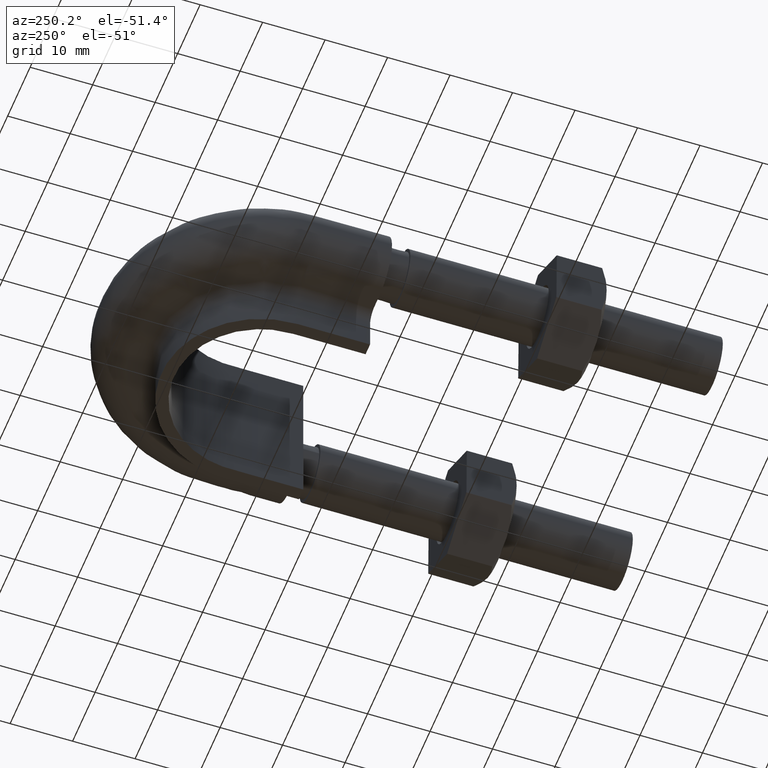
[diagram: clean part render]
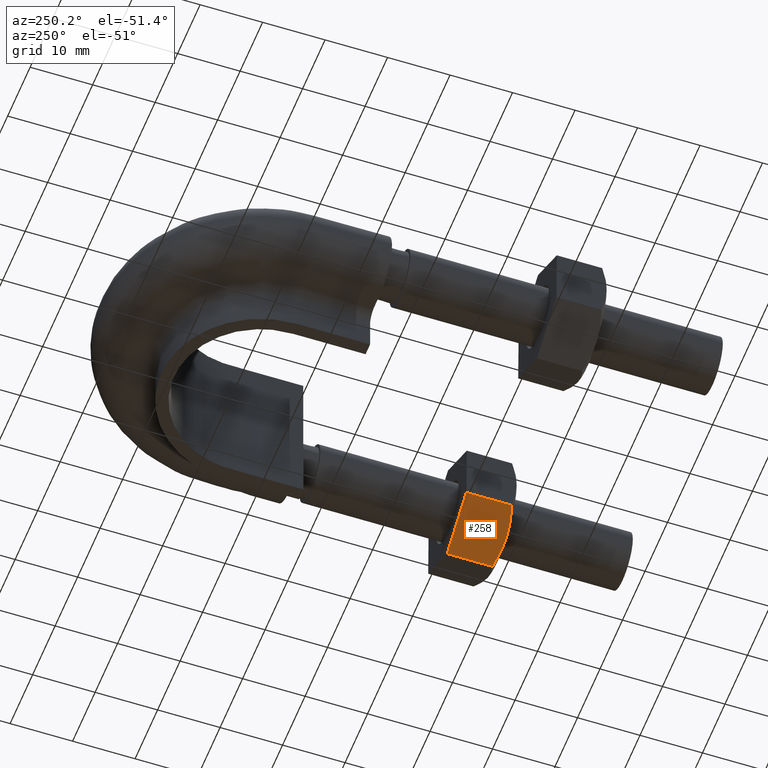
[diagram: same view with one face highlighted and labeled with its STEP entity id]
A machine part, auxiliary view. The second image highlights one B-rep face of the part: STEP entity #258.
In plain terms, the highlighted planar face has unit normal (0.4823, -0, 0.876).
Its self-contained STEP definition (entity closure, byte-faithful):
#258 = ADVANCED_FACE( '', ( #371 ), #372, .F. );
#371 = FACE_OUTER_BOUND( '', #1229, .T. );
#372 = PLANE( '', #1230 );
#1229 = EDGE_LOOP( '', ( #1569, #1570, #1571, #1572, #1573 ) );
#1230 = AXIS2_PLACEMENT_3D( '', #1574, #1575, #1576 );
#1569 = ORIENTED_EDGE( '', *, *, #1811, .F. );
#1570 = ORIENTED_EDGE( '', *, *, #1812, .F. );
#1571 = ORIENTED_EDGE( '', *, *, #1813, .F. );
#1572 = ORIENTED_EDGE( '', *, *, #1814, .F. );
#1573 = ORIENTED_EDGE( '', *, *, #1815, .F. );
#1574 = CARTESIAN_POINT( '', ( 20.1997514364695, 28.0000000000024, -9.81292172071915 ) );
#1575 = DIRECTION( '', ( 0.482271314163917, -2.89876105836329E-016, 0.876021905853163 ) );
#1576 = DIRECTION( '', ( -6.01064374601812E-016, -1.00000000000000, 0.000000000000000 ) );
#1811 = EDGE_CURVE( '', #1989, #1990, #1991, .T. );
#1812 = EDGE_CURVE( '', #1992, #1989, #1993, .T. );
#1813 = EDGE_CURVE( '', #1994, #1992, #1995, .T. );
#1814 = EDGE_CURVE( '', #1996, #1994, #1997, .T. );
#1815 = EDGE_CURVE( '', #1990, #1996, #1998, .F. );
#1989 = VERTEX_POINT( '', #2455 );
#1990 = VERTEX_POINT( '', #2456 );
#1991 = B_SPLINE_CURVE_WITH_KNOTS( '', 3, ( #2457, #2458, #2459, #2460, #2461, #2462 ), .UNSPECIFIED., .F., .F., ( 4, 2, 4 ), ( 7.41074193791804E-018, 0.00246745482903605, 0.00493490965807209 ), .UNSPECIFIED. );
#1992 = VERTEX_POINT( '', #2463 );
#1993 = B_SPLINE_CURVE_WITH_KNOTS( '', 3, ( #2464, #2465, #2466, #2467, #2468, #2469 ), .UNSPECIFIED., .F., .F., ( 4, 2, 4 ), ( 1.81939333073296E-017, 0.00246745482903606, 0.00493490965807211 ), .UNSPECIFIED. );
#1994 = VERTEX_POINT( '', #2470 );
#1995 = LINE( '', #2471, #2472 );
#1996 = VERTEX_POINT( '', #2473 );
#1997 = LINE( '', #2474, #2475 );
#1998 = LINE( '', #2476, #2477 );
#2455 = CARTESIAN_POINT( '', ( 15.9006938296067, 20.0000000000024, -7.44618619975189 ) );
#2456 = CARTESIAN_POINT( '', ( 20.1734901141408, 20.7505553499489, -9.79846422559656 ) );
#2457 = CARTESIAN_POINT( '', ( 15.9006938296067, 20.0000000000024, -7.44618619975190 ) );
#2458 = CARTESIAN_POINT( '', ( 16.6296894312789, 20.0000000000024, -7.84751596615284 ) );
#2459 = CARTESIAN_POINT( '', ( 17.3490263196632, 20.0716504305315, -8.24352837653868 ) );
#2460 = CARTESIAN_POINT( '', ( 18.7718058466763, 20.3328582843731, -9.02680302717638 ) );
#2461 = CARTESIAN_POINT( '', ( 19.4753640330606, 20.5215585493681, -9.41412887927124 ) );
#2462 = CARTESIAN_POINT( '', ( 20.1734901141408, 20.7505553499489, -9.79846422559657 ) );
#2463 = CARTESIAN_POINT( '', ( 11.6278975450726, 20.7505553499489, -5.09390817390725 ) );
#2464 = CARTESIAN_POINT( '', ( 11.6278975450726, 20.7505553499489, -5.09390817390724 ) );
#2465 = CARTESIAN_POINT( '', ( 12.3260236261528, 20.5215585493681, -5.47824352023257 ) );
#2466 = CARTESIAN_POINT( '', ( 13.0295818125371, 20.3328582843731, -5.86556937232742 ) );
#2467 = CARTESIAN_POINT( '', ( 14.4523613395502, 20.0716504305315, -6.64884402296513 ) );
#2468 = CARTESIAN_POINT( '', ( 15.1716982279345, 20.0000000000024, -7.04485643335096 ) );
#2469 = CARTESIAN_POINT( '', ( 15.9006938296067, 20.0000000000024, -7.44618619975190 ) );
#2470 = CARTESIAN_POINT( '', ( 11.6278975450726, 28.0000000000024, -5.09390817390725 ) );
#2471 = CARTESIAN_POINT( '', ( 11.6278975450726, 28.0000000000024, -5.09390817390725 ) );
#2472 = VECTOR( '', #2709, 1000.00000000000 );
#2473 = CARTESIAN_POINT( '', ( 20.1734901141408, 28.0000000000024, -9.79846422559655 ) );
#2474 = CARTESIAN_POINT( '', ( 11.6081864909262, 28.0000000000024, -5.08305676034871 ) );
#2475 = VECTOR( '', #2710, 1000.00000000000 );
#2476 = CARTESIAN_POINT( '', ( 20.1734901141408, 28.0000000000024, -9.79846422559655 ) );
#2477 = VECTOR( '', #2711, 1000.00000000000 );
#2709 = DIRECTION( '', ( -4.89842541528950E-016, -1.00000000000000, -6.12303176911188E-017 ) );
#2710 = DIRECTION( '', ( -0.876021905853163, 3.99583171018579E-016, 0.482271314163917 ) );
#2711 = DIRECTION( '', ( -4.89842541528950E-016, -1.00000000000000, -6.12303176911188E-017 ) );